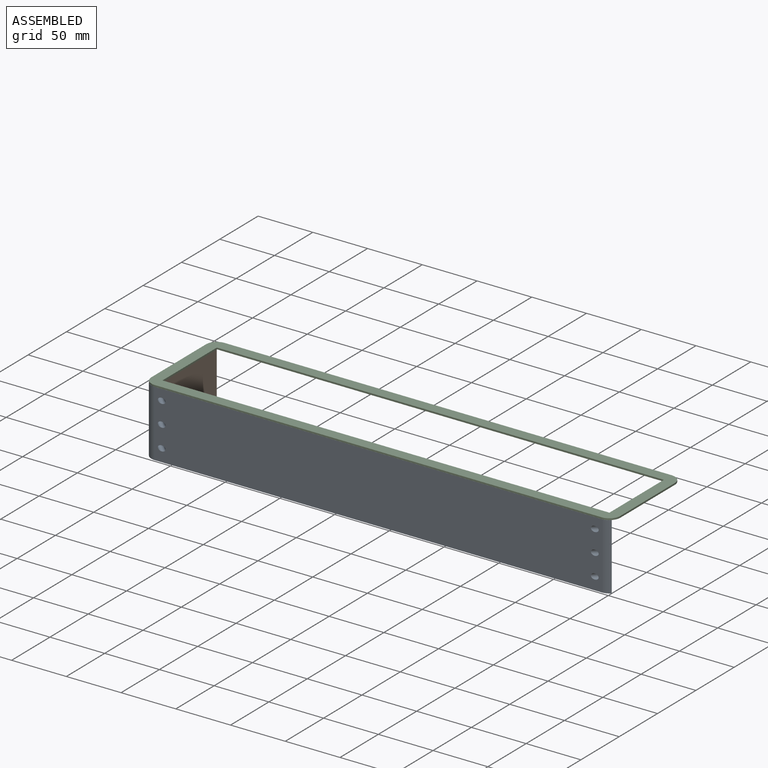
[diagram: assembled view]
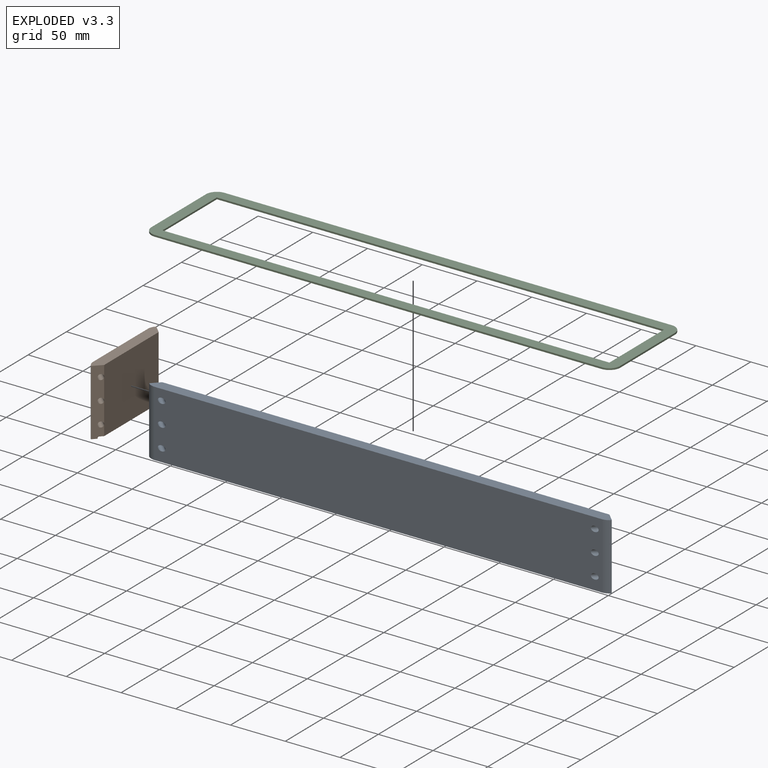
[diagram: exploded view]
GUIDED TOUR — FREECAD ASSEMBLY "Assembly"

This assembly has 3 components, labeled P0..P2 below (a component is one placed body or linked part; the same part can appear more than once), held together by 0 modeled joints plus 3 derived contact edges. A joint is a constraint between two components; its type names the relative motion it leaves free:
  CONTACT — a derived adjacency edge — the two components touch in the source model (clearance under 2% of the assembly's diagonal); it is measured from the geometry, not a modeled constraint.
Axis/direction vectors are unit vectors and 'through' points are millimeter coordinates, both in the assembly's world frame.

MATES
  1. CONTACT "contact_0_1": P0 <-> P1, contact direction (-1.000, 0.000, 0.000) through (-360.95, -3.52, 0.00) mm (derived from contact, not a modeled constraint)
  2. CONTACT "contact_0_2": P0 <-> P2, contact direction (0.000, 0.000, 1.000) through (57.00, -8.00, 60.50) mm (derived from contact, not a modeled constraint)
  3. CONTACT "contact_1_2": P1 <-> P2, contact direction (0.000, 0.000, 1.000) through (-357.36, 0.05, 60.50) mm (derived from contact, not a modeled constraint)

ASSEMBLY ORDER
  1. P0 — the base component [order verified]
  2. P1 [order verified]
  3. P2 [order verified]
Order-tag legend:
  [order verified] — this step's position reverses a verified removal order: the component was checked to insert without passing through the ones already placed.

Of the 3 components, 3 carry a construction recipe — the FreeCAD feature program (sketches with constraints, then the solid features that consume them) that regenerates the part from scratch, quoted from this document or from the linked companion document it references; the rest are supplied as boundary geometry only. The tour below walks the components in assembly order: each is shown spotlighted twice — in the assembled view, then in the exploded view, where a leader line traces a displaced component back to its assembled socket (components that stay in place when exploded have no leader line; saturated green if recipe-attached, orange if geometry-only; every other component desaturated gray) — followed by its recipe or geometry summary and the mates that hold it.
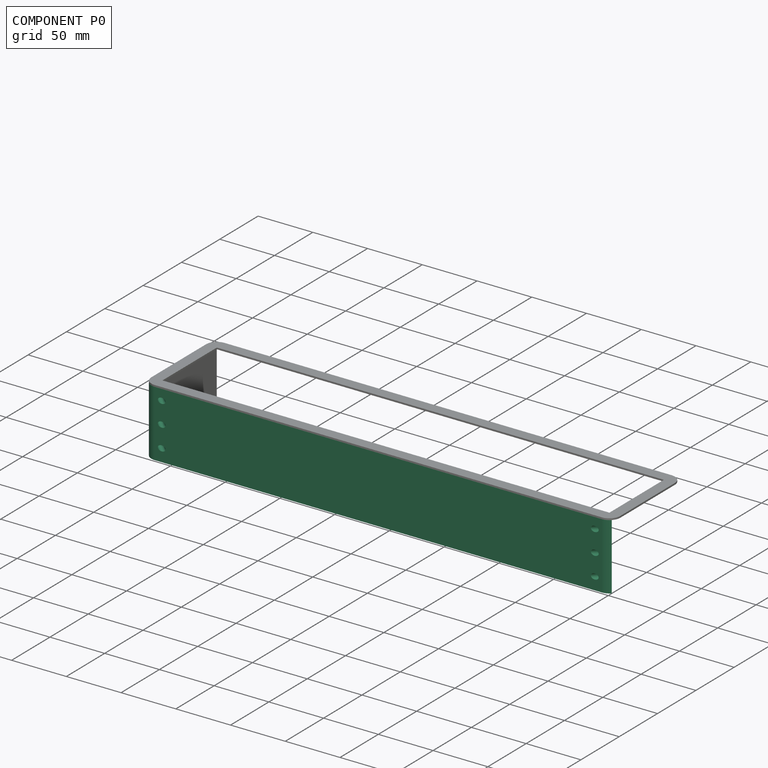
[diagram: component P0 — assembled]
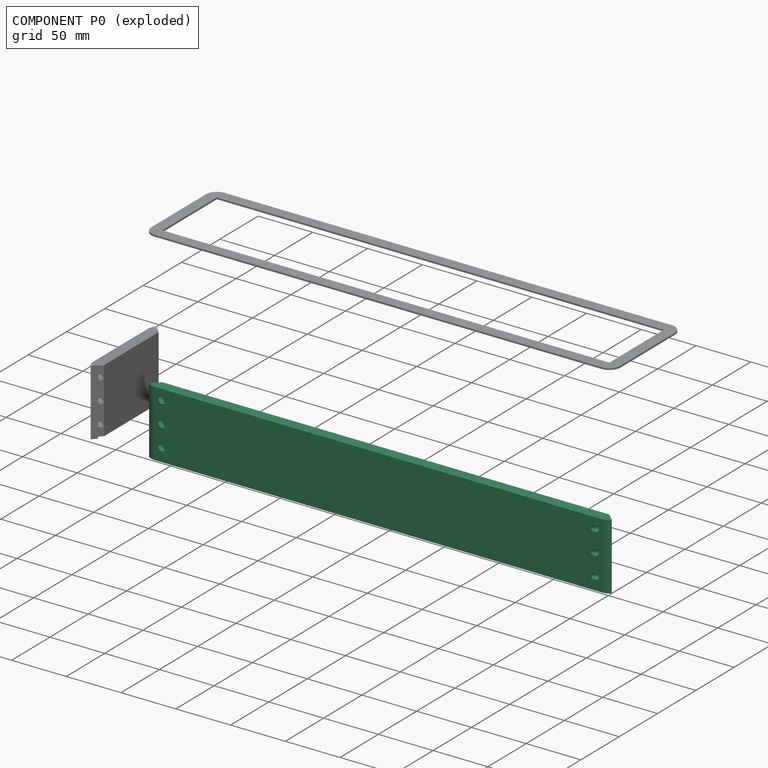
[diagram: component P0 — exploded]
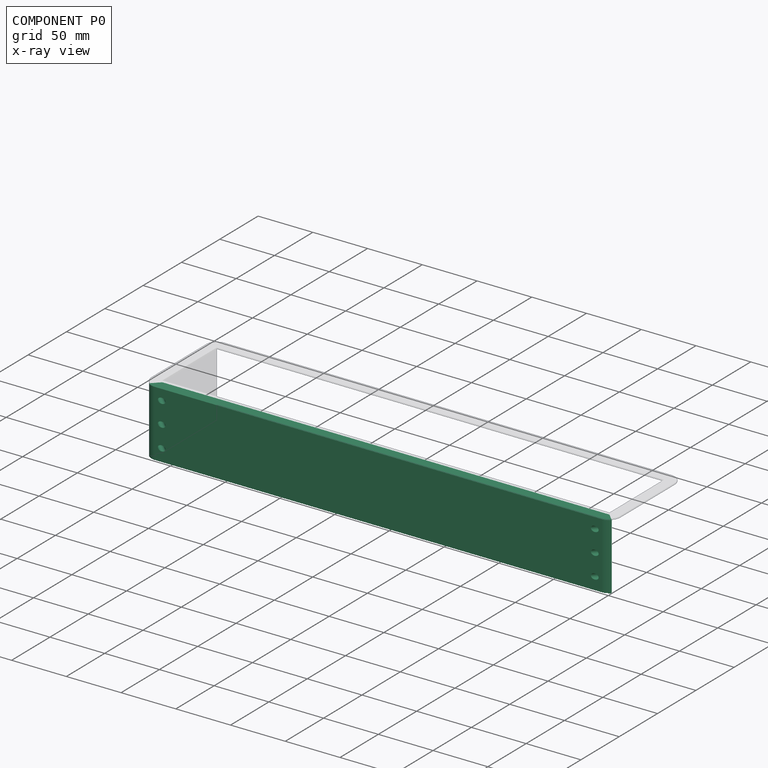
[diagram: component P0 — x-ray view]
COMPONENT P0 — recipe-attached ("Part005", modeled in this document).
Held by: resting contact with P1 (derived edge); resting contact with P2 (derived edge).
Construction recipe (the document's own serialized feature program — sketch geometry with constraints, then the solid features built on it; lengths are millimeters unless a unit is written):

FEATURE [Sketcher::SketchObject] Sketch
  FullyConstrained = true
  MapMode = 5
  Placement = pos=(0,0,0) rot=(1,0,0;1.5708rad)
  Support = -> [XZ_Plane001]
  sketch-geometry (6):
    g0: LineSegment StartX=-204.25 StartY=0 StartZ=0 EndX=204.25 EndY=0 EndZ=0
    g1: LineSegment StartX=204.25 StartY=0 StartZ=0 EndX=211.321 EndY=7.07107 EndZ=0
    g2: LineSegment StartX=204.25 StartY=10 StartZ=0 EndX=-204.25 EndY=10 EndZ=0
    g3: LineSegment StartX=-211.321 StartY=7.07107 StartZ=0 EndX=-204.25 EndY=0 EndZ=0
    g4: ArcOfCircle CenterX=204.25 CenterY=0 CenterZ=0 NormalX=0 NormalY=0 NormalZ=1 AngleXU=0 Radius=10 StartAngle=0.785398 EndAngle=1.5708
    g5: ArcOfCircle CenterX=-204.25 CenterY=0 CenterZ=0 NormalX=0 NormalY=0 NormalZ=1 AngleXU=0 Radius=10 StartAngle=1.5708 EndAngle=2.35619
  constraints (15):
    c: Coincident(g1,g0)
    c: Coincident(g3,g0)
    c: Perpendicular(g1,g3)
    c: Distance(g0) = 408.5
    c: PointOnObject(g0,g-1)
    c: Distance(g2,g-1) = 10
    c: Horizontal(g2)
    c: Coincident(g4,g0)
    c: Coincident(g4,g1)
    c: Tangent(g4,g2) = -1.5708
    c: Angle(g1,g-1) = 2.35619
    c: Coincident(g5,g0)
    c: Coincident(g5,g3)
    c: Tangent(g5,g2) = -1.5708
    c: Symmetric(g0,g0,g-2)
FEATURE [PartDesign::Pad] Pad
  Direction = (0,-1,-2e-16)
  Length = 60.5
  Length2 = 10
  Placement = pos=(0,0,0) rot=(1,0,0;1.5708rad)
  Profile = -> Sketch
  ReferenceAxis = -> Sketch [N_Axis]
  Type = 0
FEATURE [Sketcher::SketchObject] Sketch001
  ExternalGeometry = -> [Pad]
  FullyConstrained = true
  MapMode = 5
  Placement = pos=(0,0,0) rot=(-1,0,0;1.5708rad)
  Support = -> [Pad]
  sketch-geometry (6):
    g0: LineSegment StartX=204.25 StartY=0 StartZ=0 EndX=-204.25 EndY=0 EndZ=0
    g1: LineSegment StartX=-204.25 StartY=0 StartZ=0 EndX=-207.786 EndY=-3.53553 EndZ=0
    g2: ArcOfCircle CenterX=-204.25 CenterY=0 CenterZ=0 NormalX=0 NormalY=0 NormalZ=1 AngleXU=0 Radius=5 StartAngle=3.92699 EndAngle=4.71239
    g3: LineSegment StartX=-204.25 StartY=-5 StartZ=0 EndX=204.25 EndY=-5 EndZ=0
    g4: ArcOfCircle CenterX=204.25 CenterY=0 CenterZ=0 NormalX=0 NormalY=0 NormalZ=1 AngleXU=0 Radius=5 StartAngle=4.71239 EndAngle=5.49779
    g5: LineSegment StartX=204.25 StartY=0 StartZ=0 EndX=207.786 EndY=-3.53553 EndZ=0
  constraints (14):
    c: Coincident(g0,g-5)
    c: Coincident(g0,g-4)
    c: Coincident(g1,g0)
    c: PointOnObject(g1,g-3)
    c: Coincident(g2,g0)
    c: Coincident(g2,g1)
    c: Horizontal(g3)
    c: Coincident(g4,g0)
    c: PointOnObject(g4,g-5)
    c: Coincident(g5,g0)
    c: Coincident(g5,g4)
    c: Radius(g4) = 5
    c: Tangent(g4,g3) = -1.5708
    c: Tangent(g3,g2) = -1.5708
FEATURE [PartDesign::Pocket] Pocket
  BaseFeature = -> Pad
  Direction = (0,-1,-2e-16)
  Length = 1.6
  Length2 = 5
  Placement = pos=(0,0,0) rot=(1,0,0;1.5708rad)
  Profile = -> Sketch001
  ReferenceAxis = -> Sketch001 [N_Axis]
  Type = 0
FEATURE [Sketcher::SketchObject] Sketch002
  ExternalGeometry = -> [Pocket]
  FullyConstrained = true
  MapMode = 5
  Placement = pos=(0,0,0) rot=(1,0,0;3.14159rad)
  Support = -> [Pocket]
  sketch-geometry (4):
    g0: LineSegment StartX=-211.321 StartY=21.6 StartZ=0 EndX=211.321 EndY=21.6 EndZ=0
    g1: LineSegment StartX=211.321 StartY=21.6 StartZ=0 EndX=211.321 EndY=16.6 EndZ=0
    g2: LineSegment StartX=211.321 StartY=16.6 StartZ=0 EndX=-211.321 EndY=16.6 EndZ=0
    g3: LineSegment StartX=-211.321 StartY=16.6 StartZ=0 EndX=-211.321 EndY=21.6 EndZ=0
  constraints (12):
    c: Coincident(g0,g1)
    c: Coincident(g1,g2)
    c: Coincident(g2,g3)
    c: Coincident(g3,g0)
    c: Horizontal(g0)
    c: Horizontal(g2)
    c: Vertical(g1)
    c: Vertical(g3)
    c: PointOnObject(g0,g-3)
    c: PointOnObject(g1,g-4)
    c: Distance(g-5,g0) = 20
    c: Distance(g1) = 5
FEATURE [PartDesign::Pocket] Pocket001
  BaseFeature = -> Pocket
  Direction = (0,-2e-16,1)
  Length = 2.5
  Length2 = 5
  Placement = pos=(0,0,0) rot=(1,0,0;1.5708rad)
  Profile = -> Sketch002
  ReferenceAxis = -> Sketch002 [N_Axis]
  Type = 0
FEATURE [Sketcher::SketchObject] Sketch003
  ExternalGeometry = -> [Pocket001]
  FullyConstrained = true
  MapMode = 5
  Placement = pos=(-102.125,-2.27e-14,-102.125) rot=(0.92388,0,-0.382683;3.14159rad)
  Support = -> [Pocket001]
  sketch-geometry (6):
    g0: Circle CenterX=-146.927 CenterY=50.6833 CenterZ=0 NormalX=0 NormalY=0 NormalZ=1 AngleXU=0 Radius=2.5
    g1: LineSegment StartX=-146.927 StartY=60.5 StartZ=0 EndX=-146.927 EndY=40.8667 EndZ=0
    g2: LineSegment StartX=-146.927 StartY=40.8667 StartZ=0 EndX=-146.927 EndY=21.2333 EndZ=0
    g3: LineSegment StartX=-146.927 StartY=21.2333 StartZ=0 EndX=-146.927 EndY=1.6 EndZ=0
    g4: Circle CenterX=-146.927 CenterY=31.05 CenterZ=0 NormalX=0 NormalY=0 NormalZ=1 AngleXU=0 Radius=2.5
    g5: Circle CenterX=-146.927 CenterY=11.4167 CenterZ=0 NormalX=0 NormalY=0 NormalZ=1 AngleXU=0 Radius=2.5
  constraints (16):
    c: PointOnObject(g1,g-3)
    c: Vertical(g1)
    c: Coincident(g2,g1)
    c: Vertical(g2)
    c: Coincident(g3,g2)
    c: PointOnObject(g3,g-4)
    c: Vertical(g3)
    c: Equal(g1,g2)
    c: Equal(g2,g3)
    c: Equal(g0,g4)
    c: Equal(g4,g5)
    c: Diameter(g0) = 5
    c: Symmetric(g1,g1,g0)
    c: Symmetric(g1,g2,g4)
    c: Symmetric(g2,g3,g5)
    c: Distance(g1,g-3) = 2.5
FEATURE [PartDesign::Pocket] Pocket002
  BaseFeature = -> Pocket001
  Direction = (0.707107,-2e-16,0.707107)
  Length = 5
  Length2 = 5
  Placement = pos=(0,0,0) rot=(1,0,0;1.5708rad)
  Profile = -> Sketch003
  ReferenceAxis = -> Sketch003 [N_Axis]
  Type = 2
FEATURE [PartDesign::Mirrored] Mirrored
  BaseFeature = -> Pocket002
  MirrorPlane = -> YZ_Plane001
  Originals = -> [Pocket002]
  Placement = pos=(0,0,0) rot=(1,0,0;1.5708rad)
FEATURE [PartDesign::Body] Body
  Group = -> [Sketch,Pad,Sketch001,Pocket,Sketch002,Pocket001,Sketch003,Pocket002,Mirrored]
  Origin = -> Origin001
  Tip = -> Mirrored
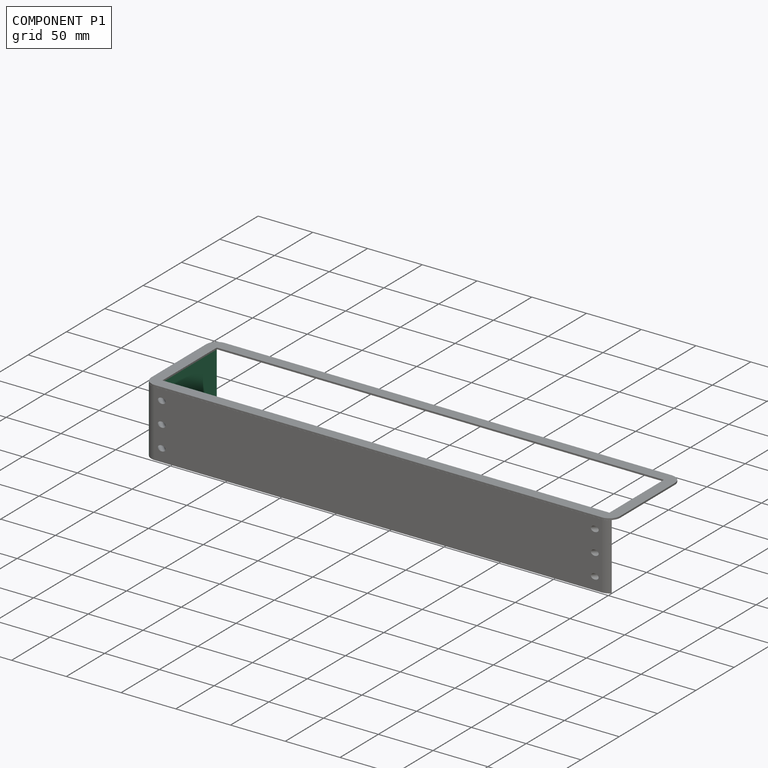
[diagram: component P1 — assembled]
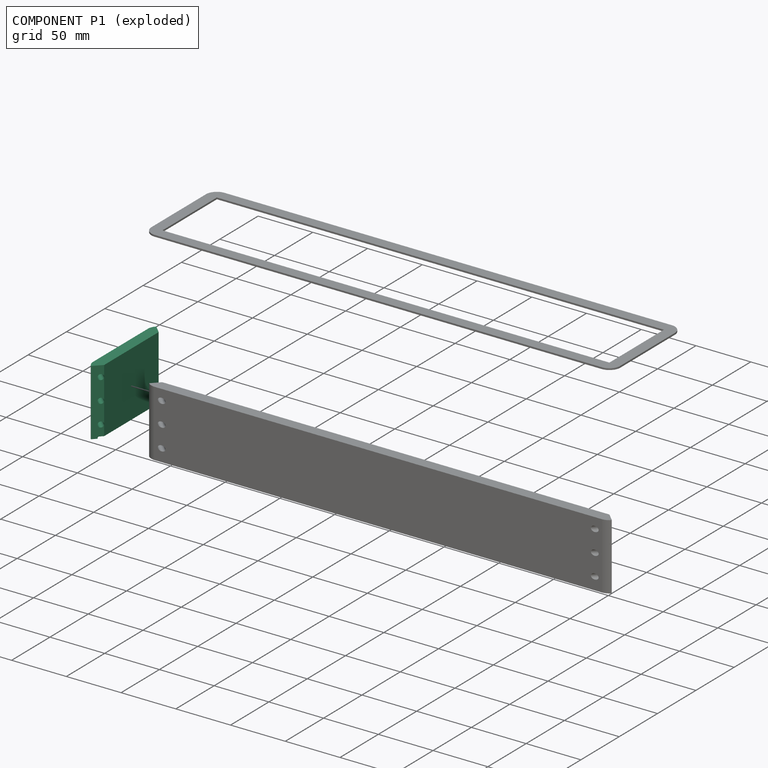
[diagram: component P1 — exploded]
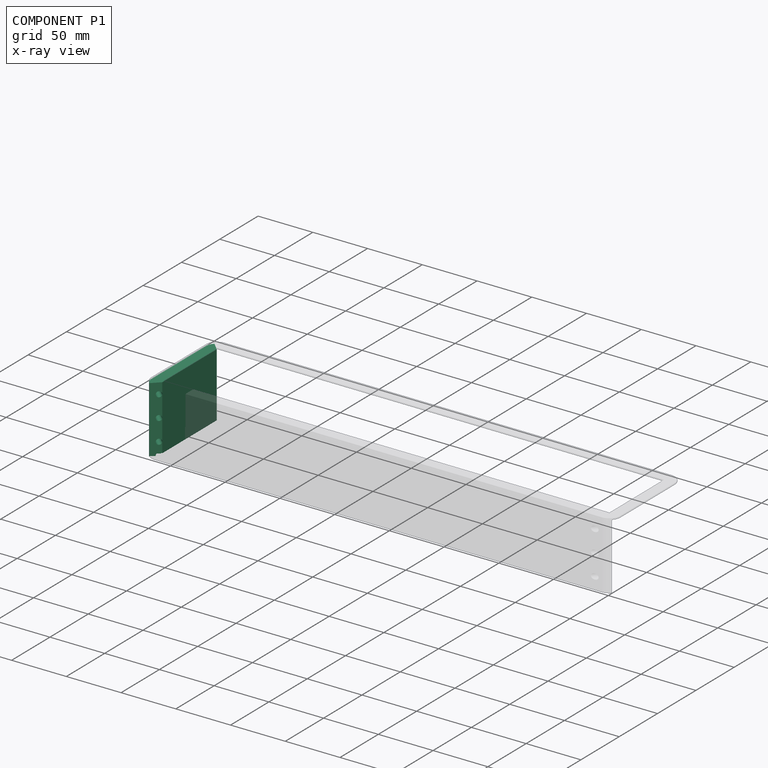
[diagram: component P1 — x-ray view]
COMPONENT P1 — recipe-attached ("Part007", modeled in this document).
Held by: resting contact with P0 (derived edge); resting contact with P2 (derived edge).
Construction recipe (the document's own serialized feature program — sketch geometry with constraints, then the solid features built on it; lengths are millimeters unless a unit is written):

FEATURE [Sketcher::SketchObject] Sketch004
  FullyConstrained = true
  MapMode = 5
  Support = -> [XY_Plane007]
  sketch-geometry (6):
    g0: LineSegment StartX=0 StartY=35.56 StartZ=0 EndX=0 EndY=-35.56 EndZ=0
    g1: LineSegment StartX=10 StartY=35.56 StartZ=0 EndX=10 EndY=-35.56 EndZ=0
    g2: ArcOfCircle CenterX=0 CenterY=35.56 CenterZ=0 NormalX=0 NormalY=0 NormalZ=1 AngleXU=0 Radius=10 StartAngle=2e-16 EndAngle=0.785398
    g3: LineSegment StartX=7.07107 StartY=42.6311 StartZ=0 EndX=0 EndY=35.56 EndZ=0
    g4: LineSegment StartX=0 StartY=-35.56 StartZ=0 EndX=7.07107 EndY=-42.6311 EndZ=0
    g5: ArcOfCircle CenterX=0 CenterY=-35.56 CenterZ=0 NormalX=0 NormalY=0 NormalZ=1 AngleXU=0 Radius=10 StartAngle=5.49779 EndAngle=6.28319
  constraints (15):
    c: PointOnObject(g0,g-2)
    c: Vertical(g1)
    c: Coincident(g2,g0)
    c: Coincident(g3,g2)
    c: Coincident(g3,g0)
    c: Coincident(g4,g0)
    c: Coincident(g5,g0)
    c: Coincident(g5,g4)
    c: Tangent(g5,g1) = 1.5708
    c: Tangent(g2,g1) = 1.5708
    c: Angle(g0,g3) = 2.35619
    c: Distance(g1,g-2) = 10
    c: Symmetric(g0,g0,g-1)
    c: Distance(g0) = 71.12
    c: Perpendicular(g4,g3)
FEATURE [PartDesign::Pad] Pad001
  Direction = (0,0,1)
  Length = 60.5
  Length2 = 10
  Profile = -> Sketch004
  ReferenceAxis = -> Sketch004 [N_Axis]
  Type = 0
FEATURE [Sketcher::SketchObject] Sketch005
  ExternalGeometry = -> [Pad001]
  FullyConstrained = true
  MapMode = 5
  Placement = pos=(0,0,0) rot=(1,0,0;3.14159rad)
  Support = -> [Pad001]
  sketch-geometry (6):
    g0: ArcOfCircle CenterX=0 CenterY=35.56 CenterZ=0 NormalX=0 NormalY=0 NormalZ=1 AngleXU=0 Radius=5 StartAngle=0 EndAngle=0.785398
    g1: ArcOfCircle CenterX=0 CenterY=-35.56 CenterZ=0 NormalX=0 NormalY=0 NormalZ=1 AngleXU=0 Radius=5 StartAngle=5.49779 EndAngle=6.28319
    g2: LineSegment StartX=0 StartY=-35.56 StartZ=0 EndX=3.53553 EndY=-39.0955 EndZ=0
    g3: LineSegment StartX=5 StartY=-35.56 StartZ=0 EndX=5 EndY=35.56 EndZ=0
    g4: LineSegment StartX=0 StartY=35.56 StartZ=0 EndX=0 EndY=-35.56 EndZ=0
    g5: LineSegment StartX=0 StartY=35.56 StartZ=0 EndX=3.53553 EndY=39.0955 EndZ=0
  constraints (14):
    c: Coincident(g0,g-4)
    c: PointOnObject(g0,g-3)
    c: Coincident(g1,g-5)
    c: PointOnObject(g1,g-5)
    c: Coincident(g2,g1)
    c: Coincident(g2,g1)
    c: Vertical(g3)
    c: Coincident(g4,g0)
    c: Coincident(g4,g1)
    c: Coincident(g5,g0)
    c: Coincident(g5,g0)
    c: Distance(g0,g-2) = 5
    c: Tangent(g3,g0) = -1.5708
    c: Tangent(g3,g1) = -1.5708
FEATURE [PartDesign::Pocket] Pocket003
  BaseFeature = -> Pad001
  Direction = (0,0,1)
  Length = 1.75
  Length2 = 5
  Profile = -> Sketch005
  ReferenceAxis = -> Sketch005 [N_Axis]
  Type = 0
FEATURE [Sketcher::SketchObject] Sketch006
  ExternalGeometry = -> [Pocket003]
  FullyConstrained = true
  MapMode = 5
  Placement = pos=(-17.78,-17.78,0) rot=(0.862856,-0.357407,-0.357407;1.71777rad)
  Support = -> [Pocket003]
  sketch-geometry (6):
    g0: LineSegment StartX=27.6447 StartY=60.5 StartZ=0 EndX=27.6447 EndY=40.9167 EndZ=0
    g1: LineSegment StartX=27.6447 StartY=40.9167 StartZ=0 EndX=27.6447 EndY=21.3333 EndZ=0
    g2: LineSegment StartX=27.6447 StartY=21.3333 StartZ=0 EndX=27.6447 EndY=1.75 EndZ=0
    g3: Circle CenterX=27.6447 CenterY=50.7083 CenterZ=0 NormalX=0 NormalY=0 NormalZ=1 AngleXU=0 Radius=2.5
    g4: Circle CenterX=27.6447 CenterY=31.125 CenterZ=0 NormalX=0 NormalY=0 NormalZ=1 AngleXU=0 Radius=2.5
    g5: Circle CenterX=27.6447 CenterY=11.5417 CenterZ=0 NormalX=0 NormalY=0 NormalZ=1 AngleXU=0 Radius=2.5
  constraints (16):
    c: PointOnObject(g0,g-5)
    c: Vertical(g0)
    c: Coincident(g1,g0)
    c: Vertical(g1)
    c: Coincident(g2,g1)
    c: PointOnObject(g2,g-4)
    c: Vertical(g2)
    c: Equal(g0,g1)
    c: Equal(g1,g2)
    c: Symmetric(g2,g1,g5)
    c: Symmetric(g0,g1,g4)
    c: Symmetric(g0,g0,g3)
    c: Diameter(g3) = 5
    c: Equal(g3,g4)
    c: Equal(g4,g5)
    c: Distance(g0,g-5) = 2.5
FEATURE [PartDesign::Pocket] Pocket004
  BaseFeature = -> Pocket003
  Direction = (0.707107,0.707107,0)
  Length = 5
  Length2 = 5
  Profile = -> Sketch006
  ReferenceAxis = -> Sketch006 [N_Axis]
  Type = 1
FEATURE [PartDesign::Mirrored] Mirrored001
  BaseFeature = -> Pocket004
  MirrorPlane = -> XZ_Plane007
  Originals = -> [Pocket004]
FEATURE [PartDesign::Body] Body001
  Group = -> [Sketch004,Pad001,Sketch005,Pocket003,Sketch006,Pocket004,Mirrored001]
  Origin = -> Origin007
  Tip = -> Mirrored001
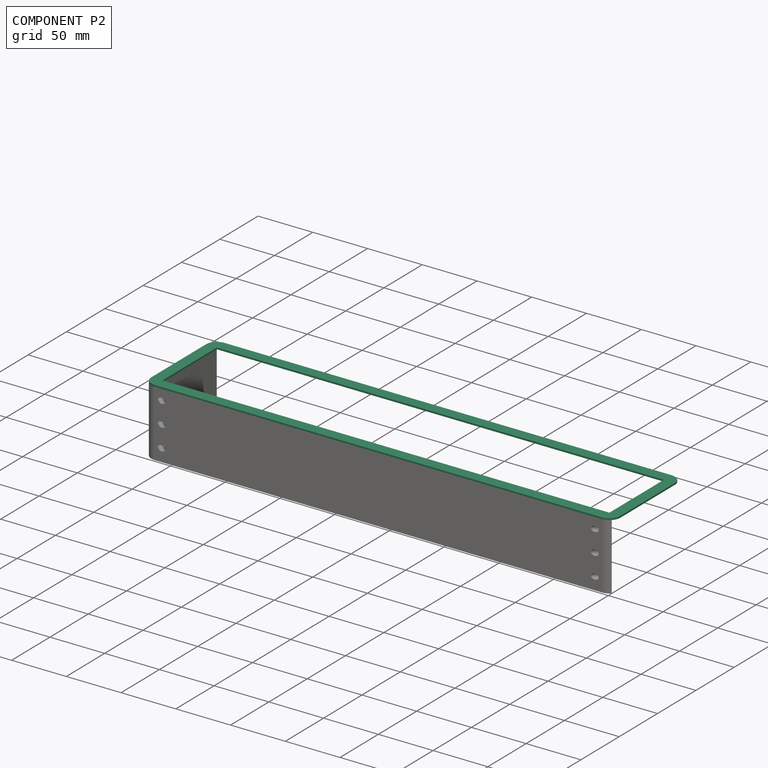
[diagram: component P2 — assembled]
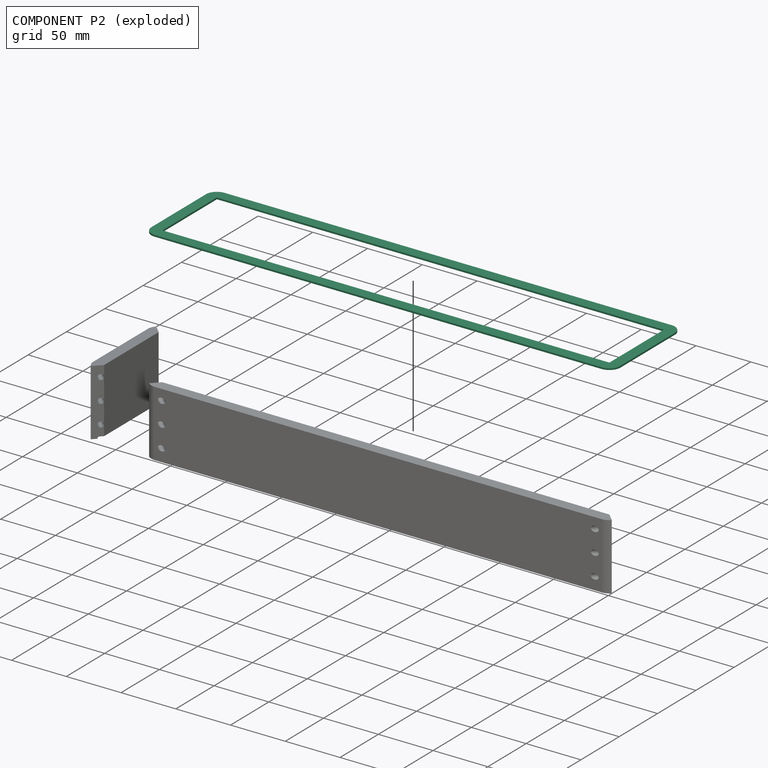
[diagram: component P2 — exploded]
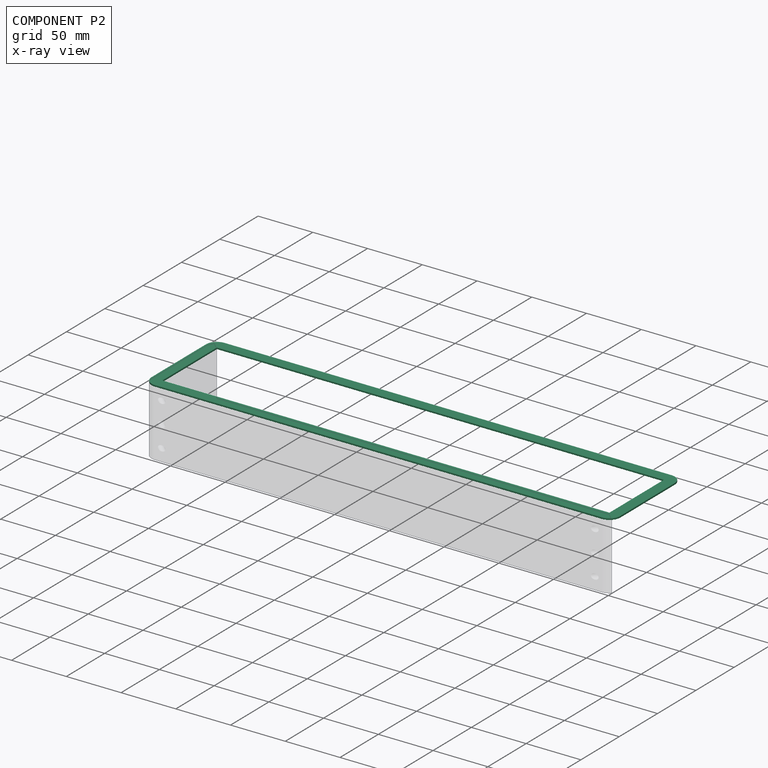
[diagram: component P2 — x-ray view]
COMPONENT P2 — recipe-attached ("Part008", modeled in this document).
Held by: resting contact with P0 (derived edge); resting contact with P1 (derived edge).
Construction recipe (the document's own serialized feature program — sketch geometry with constraints, then the solid features built on it; lengths are millimeters unless a unit is written):

FEATURE [Sketcher::SketchObject] Sketch007
  FullyConstrained = true
  MapMode = 5
  Support = -> [XY_Plane008]
  sketch-geometry (15):
    g0: LineSegment StartX=204.14 StartY=-35.525 StartZ=0 EndX=204.14 EndY=35.525 EndZ=0
    g1: LineSegment StartX=204.14 StartY=35.525 StartZ=0 EndX=-204.14 EndY=35.525 EndZ=0
    g2: LineSegment StartX=-204.14 StartY=35.525 StartZ=0 EndX=-204.14 EndY=-35.525 EndZ=0
    g3: LineSegment StartX=-204.14 StartY=-35.525 StartZ=0 EndX=204.14 EndY=-35.525 EndZ=0
    g4: GeomPoint X=0 Y=0 Z=0
    g5: ArcOfCircle CenterX=-204.14 CenterY=35.525 CenterZ=0 NormalX=0 NormalY=0 NormalZ=1 AngleXU=0 Radius=10 StartAngle=1.5708 EndAngle=3.14159
    g6: LineSegment StartX=-204.14 StartY=45.525 StartZ=0 EndX=204.14 EndY=45.525 EndZ=0
    g7: ArcOfCircle CenterX=204.14 CenterY=35.525 CenterZ=0 NormalX=0 NormalY=0 NormalZ=1 AngleXU=0 Radius=10 StartAngle=4e-16 EndAngle=1.5708
    g8: LineSegment StartX=214.14 StartY=35.525 StartZ=0 EndX=214.14 EndY=-35.525 EndZ=0
    g9: ArcOfCircle CenterX=204.14 CenterY=-35.525 CenterZ=0 NormalX=0 NormalY=0 NormalZ=1 AngleXU=0 Radius=10 StartAngle=4.71239 EndAngle=6.28319
    g10: LineSegment StartX=204.14 StartY=-45.525 StartZ=0 EndX=-204.14 EndY=-45.525 EndZ=0
    g11: ArcOfCircle CenterX=-204.14 CenterY=-35.525 CenterZ=0 NormalX=0 NormalY=0 NormalZ=1 AngleXU=0 Radius=10 StartAngle=3.14159 EndAngle=4.71239
    g12: LineSegment StartX=-214.14 StartY=-35.525 StartZ=0 EndX=-214.14 EndY=35.525 EndZ=0
    g13: GeomPoint X=-214.14 Y=45.525 Z=0
    g14: GeomPoint X=214.14 Y=-45.525 Z=0
  constraints (34):
    c: Coincident(g0,g1)
    c: Coincident(g1,g2)
    c: Coincident(g2,g3)
    c: Coincident(g3,g0)
    c: Horizontal(g1)
    c: Horizontal(g3)
    c: Vertical(g0)
    c: Vertical(g2)
    c: Symmetric(g1,g0,g4)
    c: Coincident(g4,g-1)
    c: Tangent(g5,g6) = 1.5708
    c: Tangent(g6,g7) = 1.5708
    c: Tangent(g7,g8) = 1.5708
    c: Tangent(g8,g9) = 1.5708
    c: Tangent(g9,g10) = 1.5708
    c: Tangent(g10,g11) = 1.5708
    c: Tangent(g11,g12) = 1.5708
    c: Tangent(g12,g5) = 1.5708
    c: Horizontal(g6)
    c: Horizontal(g10)
    c: Vertical(g8)
    c: Vertical(g12)
    c: Equal(g5,g7)
    c: Equal(g7,g9)
    c: Equal(g9,g11)
    c: PointOnObject(g13,g6)
    c: PointOnObject(g13,g12)
    c: PointOnObject(g14,g8)
    c: PointOnObject(g14,g10)
    c: Coincident(g5,g1)
    c: Coincident(g9,g0)
    c: Distance(g0,g6) = 10
    c: Distance(g1) = 408.28
    c: Distance(g0) = 71.05
FEATURE [PartDesign::Pad] Pad002
  Direction = (0,0,1)
  Length = 1.5
  Length2 = 10
  Profile = -> Sketch007
  ReferenceAxis = -> Sketch007 [N_Axis]
  Type = 0
FEATURE [PartDesign::Body] Body002
  Group = -> [Sketch007,Pad002]
  Origin = -> Origin008
  Placement = pos=(-153.15,35.59,60.5) rot=(0,0,1;0rad)
  Tip = -> Pad002
PROVENANCE & LICENSES
Assembly and component geometry: a FreeCAD (.FCStd) document from a public repository crawl; components, placements and joints were extracted with FreeCAD and each solid tessellated.
Construction recipes: the document's own serialized feature recipes (and, for linked parts, the recipes of companion documents from the same project).
License: as declared in the source repository (recorded in the dataset sidecar).
Joints: native FreeCAD joints and A2plus constraints are mapped to standard mate types; edges marked 'derived from contact' connect touching components and are measured from the geometry, not modeled.
Verification: 3 of this assembly's 3 components carry a construction recipe (3 from this document itself); the rest are geometry-only. Every component's tessellation passed the extraction mesh gates (mesh-volume checksum against the B-rep where available, bounding-box inflation <= 2%).
Renders: orthographic iso camera (az 35 / el 25); the floor grid conveys scale (grid pitch printed in each image; no ruler). In the exploded view each component is displaced by its stored offset vector: the offsets alone carry the explosion direction (mate normal/axis signs are not orientation cues and do not encode it), and separation distances are assigned per mate-chain, not proportionally to assembly-order depth.
